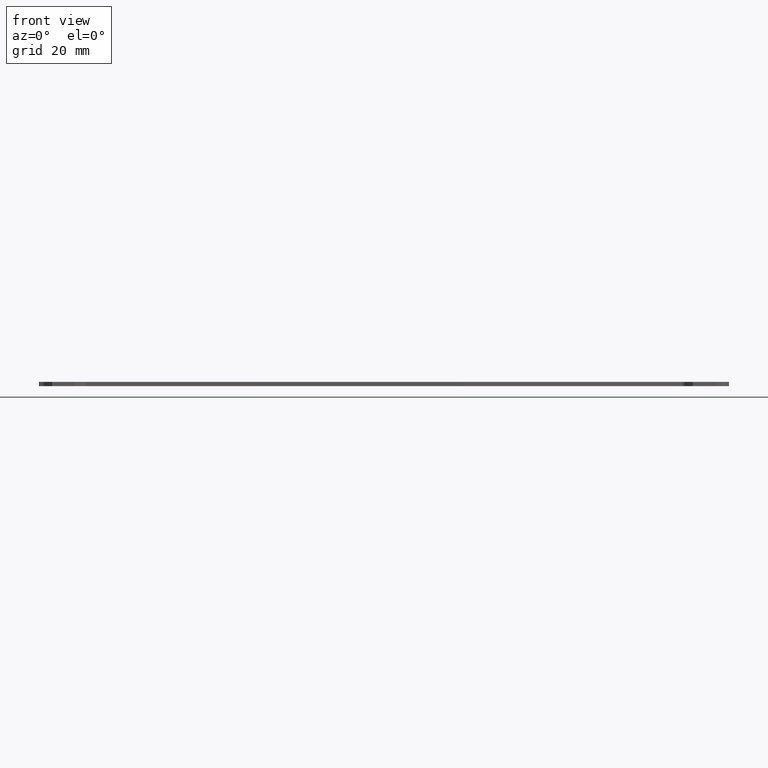
[diagram: clean part render]
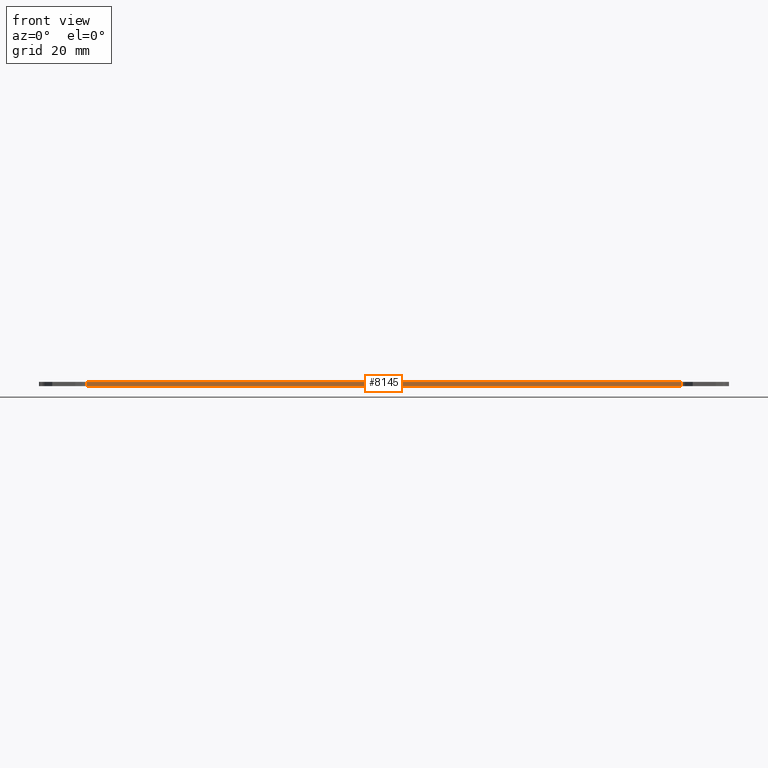
[diagram: same view with one face highlighted and labeled with its STEP entity id]
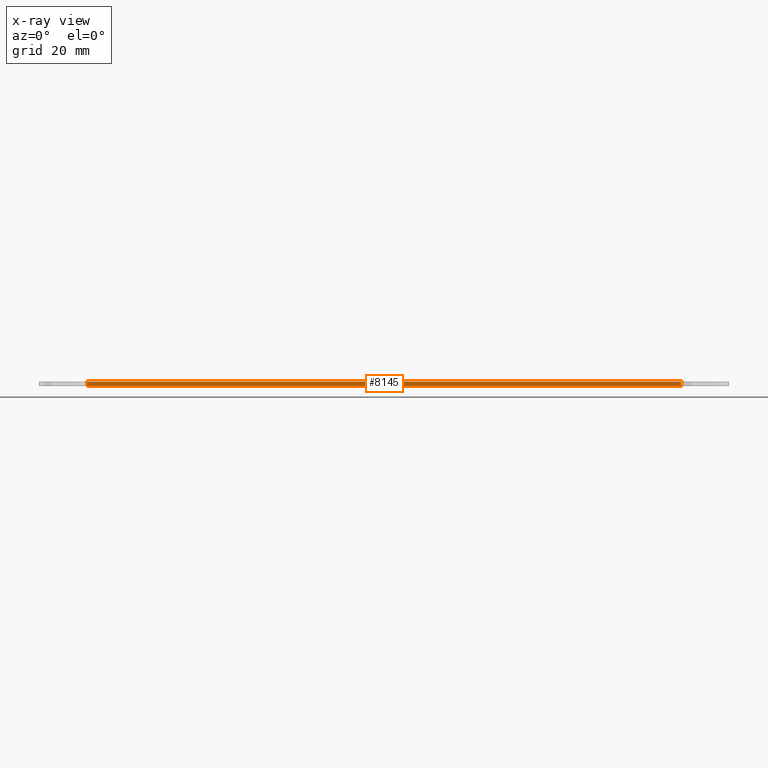
[diagram: x-ray of the same camera — body ghosted, the highlighted face saturated]
A machine part, front view. The second image highlights one B-rep face of the part: STEP entity #8145.
The next image is the same camera in x-ray: the body ghosted, the highlighted face saturated — about 0% of this face is hidden behind the body in this view.
In plain terms, the highlighted planar face has unit normal (0, 1, 0).
Its self-contained STEP definition (entity closure, byte-faithful):
#743=FACE_OUTER_BOUND('',#1161,.T.);
#1161=EDGE_LOOP('',(#5495,#5496,#5497,#5498));
#1701=LINE('',#12000,#2541);
#1702=LINE('',#12003,#2542);
#1703=LINE('',#12005,#2543);
#1704=LINE('',#12006,#2544);
#2541=VECTOR('',#9499,10.);
#2542=VECTOR('',#9502,10.);
#2543=VECTOR('',#9503,10.);
#2544=VECTOR('',#9504,10.);
#3375=VERTEX_POINT('',#11996);
#3376=VERTEX_POINT('',#11998);
#3377=VERTEX_POINT('',#12002);
#3378=VERTEX_POINT('',#12004);
#4227=EDGE_CURVE('',#3376,#3375,#1701,.T.);
#4228=EDGE_CURVE('',#3375,#3377,#1702,.T.);
#4229=EDGE_CURVE('',#3378,#3376,#1703,.T.);
#4230=EDGE_CURVE('',#3378,#3377,#1704,.T.);
#5495=ORIENTED_EDGE('',*,*,#4228,.F.);
#5496=ORIENTED_EDGE('',*,*,#4227,.F.);
#5497=ORIENTED_EDGE('',*,*,#4229,.F.);
#5498=ORIENTED_EDGE('',*,*,#4230,.T.);
#7924=PLANE('',#8591);
#8145=ADVANCED_FACE('',(#743),#7924,.F.);
#8591=AXIS2_PLACEMENT_3D('',#12001,#9500,#9501);
#9499=DIRECTION('',(0.,0.,-1.));
#9500=DIRECTION('center_axis',(1.27859968961994E-16,1.,0.));
#9501=DIRECTION('ref_axis',(1.,-1.27859968961994E-16,0.));
#9502=DIRECTION('',(-1.,1.27859968961994E-16,0.));
#9503=DIRECTION('',(1.,-1.27859968961994E-16,0.));
#9504=DIRECTION('',(0.,0.,-1.));
#11996=CARTESIAN_POINT('',(225.64114973081,-75.675,0.));
#11998=CARTESIAN_POINT('',(225.64114973081,-75.675,1.5));
#12000=CARTESIAN_POINT('',(225.64114973081,-75.675,1.5));
#12001=CARTESIAN_POINT('Origin',(17.2463502691896,-75.675,1.5));
#12002=CARTESIAN_POINT('',(17.2463502691896,-75.675,0.));
#12003=CARTESIAN_POINT('',(69.3450501345948,-75.675,0.));
#12004=CARTESIAN_POINT('',(17.2463502691896,-75.675,1.5));
#12005=CARTESIAN_POINT('',(69.3450501345948,-75.675,1.5));
#12006=CARTESIAN_POINT('',(17.2463502691896,-75.675,1.5));